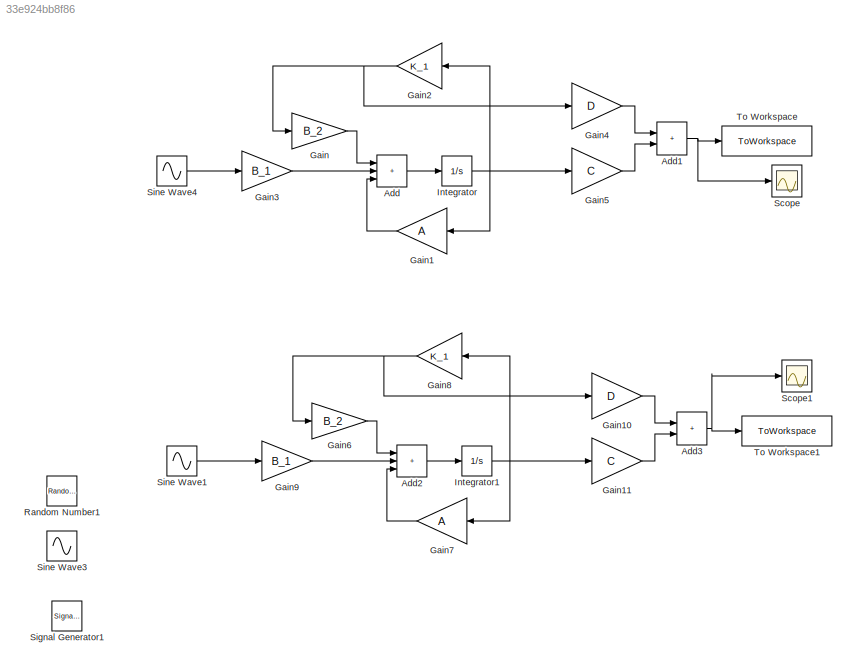
MODEL slx_33e924bb8f86
KIND model
CONFIG AbsTol = auto
CONFIG EnableMultiTasking = off
CONFIG FixedStep = 0.0001
CONFIG MaxStep = auto
CONFIG MinStep = auto
CONFIG RelTol = 1e-3
CONFIG SampleTimeConstraint = Unconstrained
CONFIG SolverName = FixedStepAuto
CONFIG StartTime = 0.0
CONFIG StopTime = 15
BLOCK [Sum] Add
  IconShape = rectangular
  Inputs = +++
BLOCK [Sum] Add1
  IconShape = rectangular
BLOCK [Sum] Add2
  IconShape = rectangular
  Inputs = +++
BLOCK [Sum] Add3
  IconShape = rectangular
BLOCK [Gain] Gain
  Gain = B_2
  Multiplication = Matrix(K*u)
BLOCK [Gain] Gain1
  Gain = A
  Multiplication = Matrix(K*u)
BLOCK [Gain] Gain10
  Gain = D
  Multiplication = Matrix(K*u)
  NameLocation = top
BLOCK [Gain] Gain11
  Gain = C
  Multiplication = Matrix(K*u)
  NameLocation = top
BLOCK [Gain] Gain2
  Gain = K_1
  Multiplication = Matrix(K*u)
BLOCK [Gain] Gain3
  Gain = B_1
  Multiplication = Matrix(K*u)
BLOCK [Gain] Gain4
  Gain = D
  Multiplication = Matrix(K*u)
  NameLocation = top
BLOCK [Gain] Gain5
  Gain = C
  Multiplication = Matrix(K*u)
  NameLocation = top
BLOCK [Gain] Gain6
  Gain = B_2
  Multiplication = Matrix(K*u)
BLOCK [Gain] Gain7
  Gain = A
  Multiplication = Matrix(K*u)
BLOCK [Gain] Gain8
  Gain = K_1
  Multiplication = Matrix(K*u)
BLOCK [Gain] Gain9
  Gain = B_1
  Multiplication = Matrix(K*u)
BLOCK [Integrator] Integrator
  InitialCondition = x_0
BLOCK [Integrator] Integrator1
  InitialCondition = x_0
BLOCK [RandomNumber] Random Number1
  Mean = 1
  SampleTime = 0.001
BLOCK [Scope] Scope
  Floating = off
  NumInputPorts = 1
  ScopeSpecificationString = Simulink.scopes.TimeScopeBlockCfg('CurrentConfiguration', extmgr.ConfigurationSet(extmgr.Configuration('Core','General UI',true),extmgr.Configuration('Core','Source UI',true),extmgr.Configuration('Sources','WiredSimulink',true),extmgr.Configuration('Visuals','Time Domain',true,'SerializedDisplays',{struct('MinYLimReal','-2129.81428','MaxYLimReal','916.03214','YLabelReal','','MinYLimMag','  0.00000...<+1412ch>
BLOCK [Scope] Scope1
  Floating = off
  NumInputPorts = 1
  ScopeSpecificationString = Simulink.scopes.TimeScopeBlockCfg('CurrentConfiguration', extmgr.ConfigurationSet(extmgr.Configuration('Core','General UI',true),extmgr.Configuration('Core','Source UI',true),extmgr.Configuration('Sources','WiredSimulink',true,'DataLoggingVariableName','ScopeData1'),extmgr.Configuration('Visuals','Time Domain',true,'SerializedDisplays',{struct('MinYLimReal','-1587.45676','MaxYLimReal','391.49831',...<+1403ch>
BLOCK [SignalGenerator] Signal Generator1
  Amplitude = 100
  Units = rad/sec
  WaveForm = square
BLOCK [Sin] Sine Wave1
  Amplitude = 100
  Frequency = 20
  SampleTime = 0
BLOCK [Sin] Sine Wave3
  Amplitude = 100
  SampleTime = 0
BLOCK [Sin] Sine Wave4
  Amplitude = 100
  SampleTime = 0
BLOCK [ToWorkspace] To Workspace
  FixptAsFi = on
  MaxDataPoints = inf
  SampleTime = -1
  SaveFormat = Timeseries
  VariableName = z
BLOCK [ToWorkspace] To Workspace1
  FixptAsFi = on
  MaxDataPoints = inf
  SampleTime = -1
  SaveFormat = Timeseries
  VariableName = z1
NET Add1:1 -> Scope:1, To Workspace:1
LINE Add2:1 -> Integrator1:1
NET Add3:1 -> Scope1:1, To Workspace1:1
LINE Add:1 -> Integrator:1
LINE Gain10:1 -> Add3:1
LINE Gain11:1 -> Add3:2
LINE Gain1:1 -> Add:3
NET Gain2:1 -> Gain4:1, Gain:1
LINE Gain3:1 -> Add:2
LINE Gain4:1 -> Add1:1
LINE Gain5:1 -> Add1:2
LINE Gain6:1 -> Add2:1
LINE Gain7:1 -> Add2:3
NET Gain8:1 -> Gain10:1, Gain6:1
LINE Gain9:1 -> Add2:2
LINE Gain:1 -> Add:1
NET Integrator1:1 -> Gain11:1, Gain7:1, Gain8:1
NET Integrator:1 -> Gain1:1, Gain2:1, Gain5:1
LINE Sine Wave1:1 -> Gain9:1
LINE Sine Wave4:1 -> Gain3:1
note: NET lines group one-source signal fan-out (src -> all destinations, sorted); 1:1 wires keep LINE
